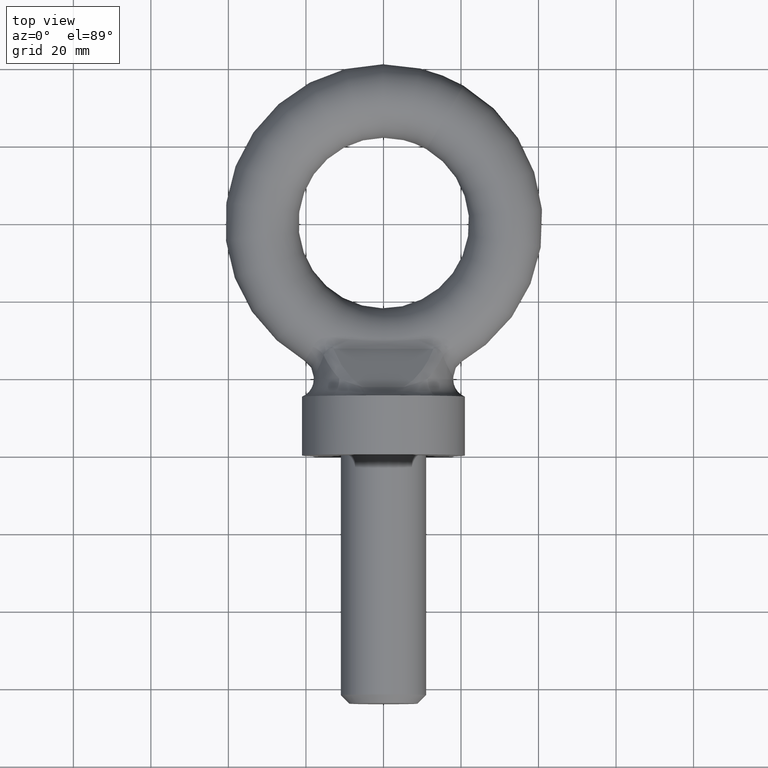
[diagram: clean part render]
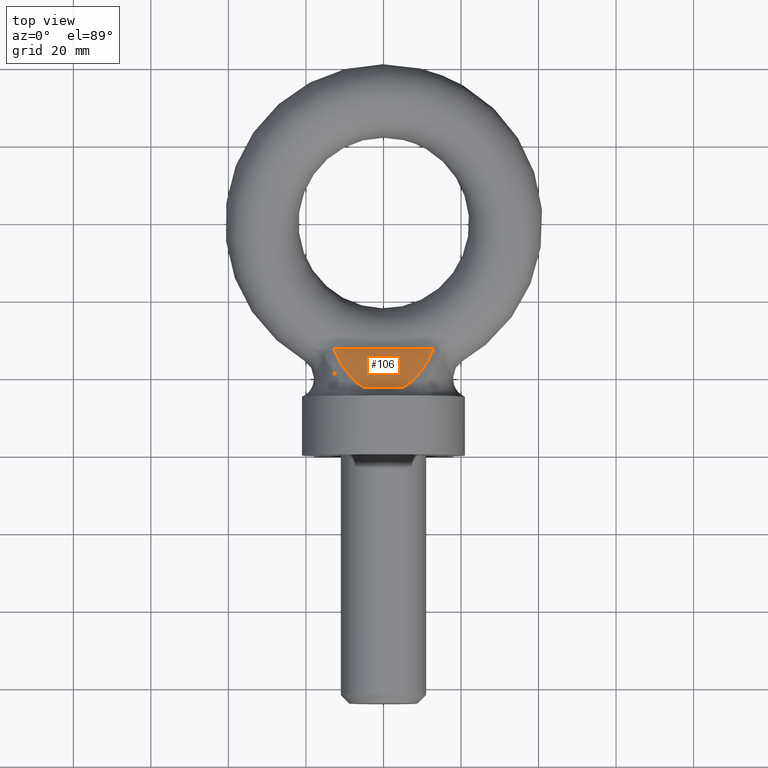
[diagram: same view with one face highlighted and labeled with its STEP entity id]
A machine part, top view. The second image highlights one B-rep face of the part: STEP entity #106.
In plain terms, the highlighted planar face has unit normal (0, 0.5385, 0.8426).
Its self-contained STEP definition (entity closure, byte-faithful):
#100=PLANE('',#485);
#106=ADVANCED_FACE('',(#140),#100,.T.);
#140=FACE_OUTER_BOUND('',#166,.T.);
#166=EDGE_LOOP('',(#258,#259,#260,#261));
#200=B_SPLINE_CURVE_WITH_KNOTS('',3,(#667,#668,#669,#670,#671,#672,#673,
#674,#675,#676),.UNSPECIFIED.,.F.,.F.,(4,3,3,4),(0.,0.169139381846514,0.595870201852012,
1.),.UNSPECIFIED.);
#201=B_SPLINE_CURVE_WITH_KNOTS('',3,(#680,#681,#682,#683,#684,#685),
 .UNSPECIFIED.,.F.,.F.,(4,2,4),(0.,0.5,1.),.UNSPECIFIED.);
#258=ORIENTED_EDGE('',*,*,#414,.T.);
#259=ORIENTED_EDGE('',*,*,#415,.T.);
#260=ORIENTED_EDGE('',*,*,#416,.T.);
#261=ORIENTED_EDGE('',*,*,#417,.T.);
#378=VERTEX_POINT('',#665);
#379=VERTEX_POINT('',#666);
#380=VERTEX_POINT('',#677);
#381=VERTEX_POINT('',#679);
#414=EDGE_CURVE('',#378,#379,#470,.T.);
#415=EDGE_CURVE('',#379,#380,#200,.T.);
#416=EDGE_CURVE('',#380,#381,#471,.T.);
#417=EDGE_CURVE('',#381,#378,#201,.T.);
#470=ELLIPSE('',#483,27.8544163843137,15.);
#471=ELLIPSE('',#484,27.8544163843137,15.);
#483=AXIS2_PLACEMENT_3D('',#664,#543,#544);
#484=AXIS2_PLACEMENT_3D('',#678,#545,#546);
#485=AXIS2_PLACEMENT_3D('',#686,#547,#548);
#543=DIRECTION('',(0.,0.538514244672787,0.842616406370359));
#544=DIRECTION('',(-3.52335065664401E-18,0.842616406370359,-0.538514244672787));
#545=DIRECTION('',(0.,0.538514244672787,0.842616406370359));
#546=DIRECTION('',(-3.52335065664401E-18,0.842616406370359,-0.538514244672787));
#547=DIRECTION('',(0.,0.538514244672787,0.842616406370359));
#548=DIRECTION('',(0.,-0.842616406370359,0.538514244672787));
#664=CARTESIAN_POINT('',(-2.75918078856623E-17,39.4093653395085,2.52784921911108));
#665=CARTESIAN_POINT('',(-12.8919818076195,27.4113454052989,10.1957566958616));
#666=CARTESIAN_POINT('',(-5.18502479122387,17.3855801587799,16.6032006504038));
#667=CARTESIAN_POINT('',(-5.18502479122387,17.3855801587799,16.6032006504038));
#668=CARTESIAN_POINT('',(-4.60045429941649,17.393287061282,16.5982751863987));
#669=CARTESIAN_POINT('',(-4.01574499858194,17.3929609468392,16.5984836054035));
#670=CARTESIAN_POINT('',(-3.43110915892727,17.3906919097665,16.5999337418786));
#671=CARTESIAN_POINT('',(-1.95605311842132,17.3849670523198,16.6035924853595));
#672=CARTESIAN_POINT('',(-0.480978491922313,17.3727430845505,16.6114047955881));
#673=CARTESIAN_POINT('',(0.994080149372973,17.3779705513628,16.6080639333396));
#674=CARTESIAN_POINT('',(2.39105258456484,17.3829212881256,16.6048999286415));
#675=CARTESIAN_POINT('',(3.78821096587556,17.4039955733731,16.5914314004759));
#676=CARTESIAN_POINT('',(5.18502479121795,17.3855801587804,16.6032006504035));
#677=CARTESIAN_POINT('',(5.18502479121944,17.3855801587774,16.6032006504054));
#678=CARTESIAN_POINT('',(-2.75918078856623E-17,39.4093653395085,2.52784921911108));
#679=CARTESIAN_POINT('',(12.8890036751312,27.4035142168667,10.2007615907243));
#680=CARTESIAN_POINT('',(12.8890036751312,27.4035142168668,10.2007615907243));
#681=CARTESIAN_POINT('',(8.59209014438557,27.2117111595701,10.323342492004));
#682=CARTESIAN_POINT('',(4.29536446201015,27.458983490076,10.1653113033349));
#683=CARTESIAN_POINT('',(-4.2983005800715,27.454080342264,10.1684448940418));
#684=CARTESIAN_POINT('',(-8.59523722114068,27.2082593860341,10.325548512685));
#685=CARTESIAN_POINT('',(-12.8919818076195,27.4113454052989,10.1957566958616));
#686=CARTESIAN_POINT('',(42.,15.2,18.));